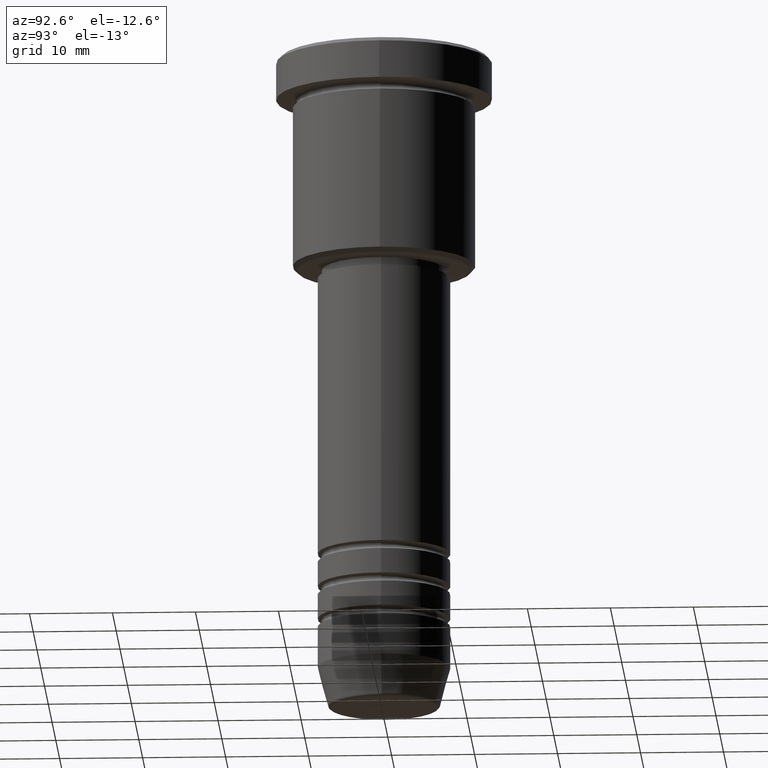
[diagram: clean part render]
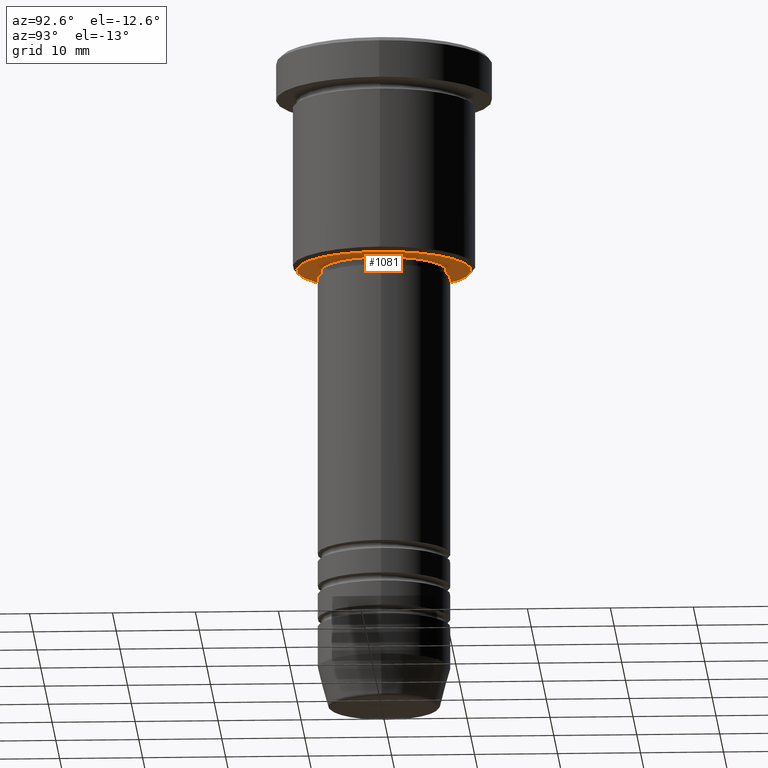
[diagram: same view with one face highlighted and labeled with its STEP entity id]
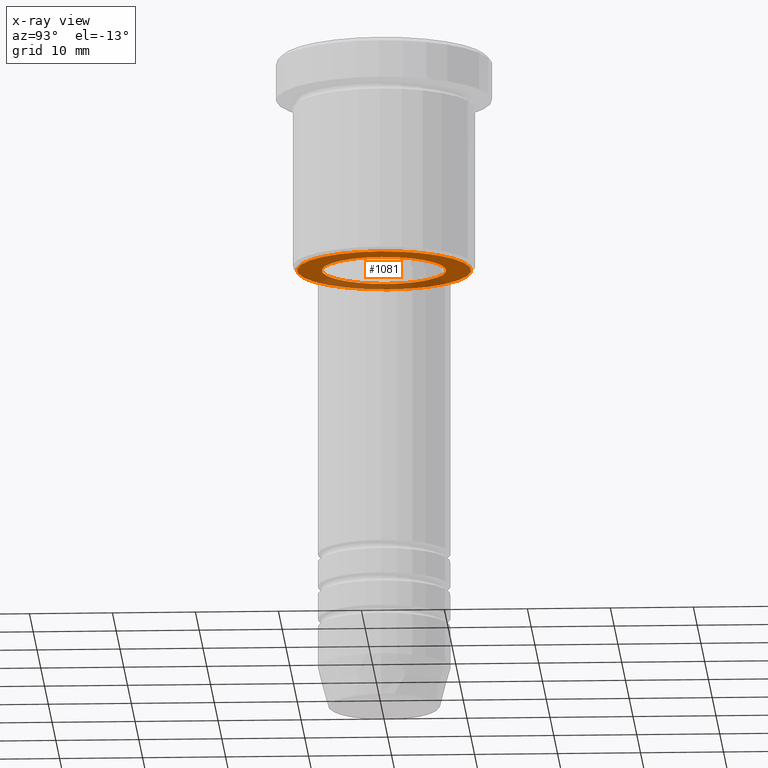
[diagram: x-ray of the same camera — body ghosted, the highlighted face saturated]
A machine part, auxiliary view. The second image highlights one B-rep face of the part: STEP entity #1081.
The next image is the same camera in x-ray: the body ghosted, the highlighted face saturated — about 29% of this face is hidden behind the body in this view.
In plain terms, the highlighted planar face has unit normal (0, 0, -1).
Its self-contained STEP definition (entity closure, byte-faithful):
#10 = CIRCLE ( 'NONE', #505, 10.50000000000000178 ) ;
#17 = ORIENTED_EDGE ( 'NONE', *, *, #922, .T. ) ;
#93 = FACE_OUTER_BOUND ( 'NONE', #185, .T. ) ;
#104 = EDGE_CURVE ( 'NONE', #1113, #797, #604, .T. ) ;
#156 = DIRECTION ( 'NONE',  ( 1.000000000000000000, 0.000000000000000000, 0.000000000000000000 ) ) ;
#173 = CARTESIAN_POINT ( 'NONE',  ( 10.50000000000000178, 0.000000000000000000, -26.00000000000000000 ) ) ;
#182 = VERTEX_POINT ( 'NONE', #771 ) ;
#185 = EDGE_LOOP ( 'NONE', ( #17, #792 ) ) ;
#242 = CARTESIAN_POINT ( 'NONE',  ( 0.000000000000000000, 0.000000000000000000, -26.00000000000000000 ) ) ;
#250 = DIRECTION ( 'NONE',  ( 0.000000000000000000, 0.000000000000000000, -1.000000000000000000 ) ) ;
#256 = CARTESIAN_POINT ( 'NONE',  ( 0.000000000000000000, 0.000000000000000000, -26.00000000000000000 ) ) ;
#265 = DIRECTION ( 'NONE',  ( 0.000000000000000000, 0.000000000000000000, -1.000000000000000000 ) ) ;
#345 = DIRECTION ( 'NONE',  ( -0.000000000000000000, -0.000000000000000000, 1.000000000000000000 ) ) ;
#359 = VERTEX_POINT ( 'NONE', #173 ) ;
#378 = DIRECTION ( 'NONE',  ( 1.000000000000000000, 0.000000000000000000, 0.000000000000000000 ) ) ;
#452 = DIRECTION ( 'NONE',  ( -1.000000000000000000, 0.000000000000000000, -0.000000000000000000 ) ) ;
#505 = AXIS2_PLACEMENT_3D ( 'NONE', #242, #615, #718 ) ;
#541 = AXIS2_PLACEMENT_3D ( 'NONE', #1108, #642, #378 ) ;
#556 = AXIS2_PLACEMENT_3D ( 'NONE', #256, #250, #1163 ) ;
#565 = EDGE_LOOP ( 'NONE', ( #690, #813 ) ) ;
#604 = CIRCLE ( 'NONE', #541, 7.500000000000000000 ) ;
#615 = DIRECTION ( 'NONE',  ( 0.000000000000000000, 0.000000000000000000, -1.000000000000000000 ) ) ;
#635 = PLANE ( 'NONE',  #1135 ) ;
#642 = DIRECTION ( 'NONE',  ( -0.000000000000000000, -0.000000000000000000, 1.000000000000000000 ) ) ;
#690 = ORIENTED_EDGE ( 'NONE', *, *, #104, .T. ) ;
#710 = AXIS2_PLACEMENT_3D ( 'NONE', #1058, #345, #156 ) ;
#718 = DIRECTION ( 'NONE',  ( -1.000000000000000000, 0.000000000000000000, 0.000000000000000000 ) ) ;
#771 = CARTESIAN_POINT ( 'NONE',  ( -10.50000000000000178, 1.316495309083404815E-15, -26.00000000000000000 ) ) ;
#792 = ORIENTED_EDGE ( 'NONE', *, *, #997, .T. ) ;
#797 = VERTEX_POINT ( 'NONE', #1144 ) ;
#807 = CIRCLE ( 'NONE', #710, 7.500000000000000000 ) ;
#813 = ORIENTED_EDGE ( 'NONE', *, *, #876, .T. ) ;
#876 = EDGE_CURVE ( 'NONE', #797, #1113, #807, .T. ) ;
#907 = CARTESIAN_POINT ( 'NONE',  ( 0.000000000000000000, 11.00000000000000000, -26.00000000000000000 ) ) ;
#922 = EDGE_CURVE ( 'NONE', #359, #182, #1015, .T. ) ;
#997 = EDGE_CURVE ( 'NONE', #182, #359, #10, .T. ) ;
#1011 = FACE_BOUND ( 'NONE', #565, .T. ) ;
#1015 = CIRCLE ( 'NONE', #556, 10.50000000000000178 ) ;
#1058 = CARTESIAN_POINT ( 'NONE',  ( 0.000000000000000000, 0.000000000000000000, -26.00000000000000000 ) ) ;
#1081 = ADVANCED_FACE ( 'NONE', ( #93, #1011 ), #635, .T. ) ;
#1087 = CARTESIAN_POINT ( 'NONE',  ( 7.500000000000000000, 0.000000000000000000, -26.00000000000000000 ) ) ;
#1108 = CARTESIAN_POINT ( 'NONE',  ( 0.000000000000000000, 0.000000000000000000, -26.00000000000000000 ) ) ;
#1113 = VERTEX_POINT ( 'NONE', #1087 ) ;
#1135 = AXIS2_PLACEMENT_3D ( 'NONE', #907, #265, #452 ) ;
#1144 = CARTESIAN_POINT ( 'NONE',  ( -7.500000000000000000, 9.184850993605147944E-16, -26.00000000000000000 ) ) ;
#1163 = DIRECTION ( 'NONE',  ( -1.000000000000000000, 0.000000000000000000, 0.000000000000000000 ) ) ;